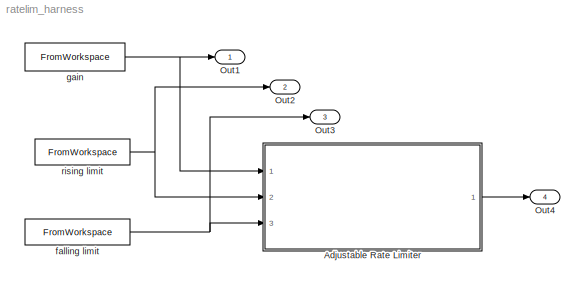
MODEL ratelim_harness
KIND model
CONFIG AbsTol = auto
CONFIG FixedStep = 0.02
CONFIG MaxStep = auto
CONFIG RelTol = 1e-3
CONFIG Solver = FixedStepDiscrete
CONFIG SolverMode = Auto
CONFIG StartTime = 0.0
CONFIG StopTime = 2
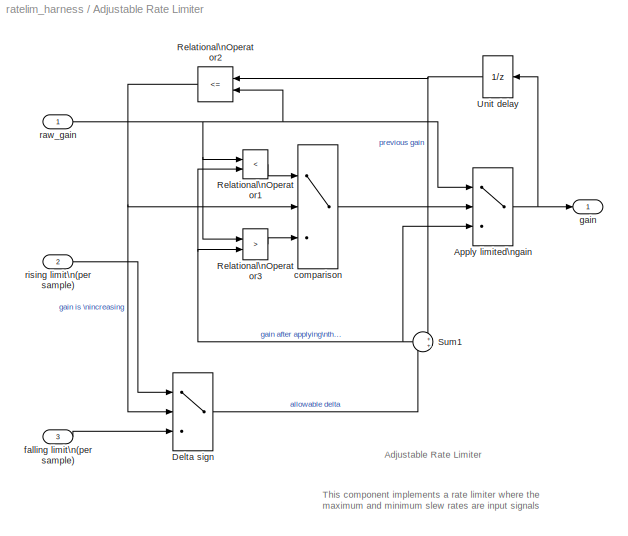
BLOCK [SubSystem] Adjustable Rate Limiter
  Ports = [3, 1]
  RTWFcnNameOpts = Auto
  RTWFileNameOpts = Auto
  RTWSystemCode = Auto
  ShowPortLabels = on
  TreatAsAtomicUnit = off
BLOCK [Switch] Adjustable Rate Limiter/Apply limited\ngain
  Threshold = 1
BLOCK [Switch] Adjustable Rate Limiter/Delta sign
  Threshold = 1
BLOCK [RelationalOperator] Adjustable Rate Limiter/Relational\nOperator1
  Operator = <
BLOCK [RelationalOperator] Adjustable Rate Limiter/Relational\nOperator2
  Operator = <=
BLOCK [RelationalOperator] Adjustable Rate Limiter/Relational\nOperator3
  Operator = >
BLOCK [Sum] Adjustable Rate Limiter/Sum1
  IconShape = round
  Inputs = ++
  Ports = [2, 1]
  SaturateOnIntegerOverflow = on
BLOCK [UnitDelay] Adjustable Rate Limiter/Unit delay
  SampleTime = .02
  X0 = 0
BLOCK [Switch] Adjustable Rate Limiter/comparison
  Threshold = 1
BLOCK [Inport] Adjustable Rate Limiter/falling limit\n(per sample)
  Interpolate = on
  Port = 3
BLOCK [Outport] Adjustable Rate Limiter/gain
  InitialOutput = []
  OutputWhenDisabled = held
  Port = 1
BLOCK [Inport] Adjustable Rate Limiter/raw_gain
  Interpolate = on
  Port = 1
BLOCK [Inport] Adjustable Rate Limiter/rising limit\n(per sample)
  Interpolate = on
  Port = 2
BLOCK [Outport] Out1
  InitialOutput = []
  OutputWhenDisabled = held
  Port = 1
BLOCK [Outport] Out2
  InitialOutput = []
  OutputWhenDisabled = held
  Port = 2
BLOCK [Outport] Out3
  InitialOutput = []
  OutputWhenDisabled = held
  Port = 3
BLOCK [Outport] Out4
  InitialOutput = []
  OutputWhenDisabled = held
  Port = 4
BLOCK [FromWorkspace] falling limit
  Interpolate = on
  OutputAfterFinalValue = Extrapolation
  SampleTime = 0
  VariableName = [t_neg, u_neg]
BLOCK [FromWorkspace] gain
  Interpolate = on
  OutputAfterFinalValue = Extrapolation
  SampleTime = 0
  VariableName = [t_gain, u_gain]
BLOCK [FromWorkspace] rising limit
  Interpolate = on
  OutputAfterFinalValue = Extrapolation
  SampleTime = 0
  VariableName = [t_pos, u_pos]
NET Adjustable Rate Limiter/Apply limited\ngain:1 -> Adjustable Rate Limiter/Unit delay:1, Adjustable Rate Limiter/gain:1
LINE Adjustable Rate Limiter/Delta sign:1 -> Adjustable Rate Limiter/Sum1:2
LINE Adjustable Rate Limiter/Relational\nOperator1:1 -> Adjustable Rate Limiter/comparison:1
NET Adjustable Rate Limiter/Relational\nOperator2:1 -> Adjustable Rate Limiter/Delta sign:2, Adjustable Rate Limiter/comparison:2
LINE Adjustable Rate Limiter/Relational\nOperator3:1 -> Adjustable Rate Limiter/comparison:3
NET Adjustable Rate Limiter/Sum1:1 -> Adjustable Rate Limiter/Apply limited\ngain:3, Adjustable Rate Limiter/Relational\nOperator1:2, Adjustable Rate Limiter/Relational\nOperator3:2
NET Adjustable Rate Limiter/Unit delay:1 -> Adjustable Rate Limiter/Relational\nOperator2:1, Adjustable Rate Limiter/Sum1:1
LINE Adjustable Rate Limiter/comparison:1 -> Adjustable Rate Limiter/Apply limited\ngain:2
LINE Adjustable Rate Limiter/falling limit\n(per sample):1 -> Adjustable Rate Limiter/Delta sign:3
NET Adjustable Rate Limiter/raw_gain:1 -> Adjustable Rate Limiter/Apply limited\ngain:1, Adjustable Rate Limiter/Relational\nOperator1:1, Adjustable Rate Limiter/Relational\nOperator2:2, Adjustable Rate Limiter/Relational\nOperator3:1
LINE Adjustable Rate Limiter/rising limit\n(per sample):1 -> Adjustable Rate Limiter/Delta sign:1
LINE Adjustable Rate Limiter:1 -> Out4:1
NET falling limit:1 -> Adjustable Rate Limiter:3, Out3:1
NET gain:1 -> Adjustable Rate Limiter:1, Out1:1
NET rising limit:1 -> Adjustable Rate Limiter:2, Out2:1
note: NET lines group one-source signal fan-out (src -> all destinations, sorted); 1:1 wires keep LINE
